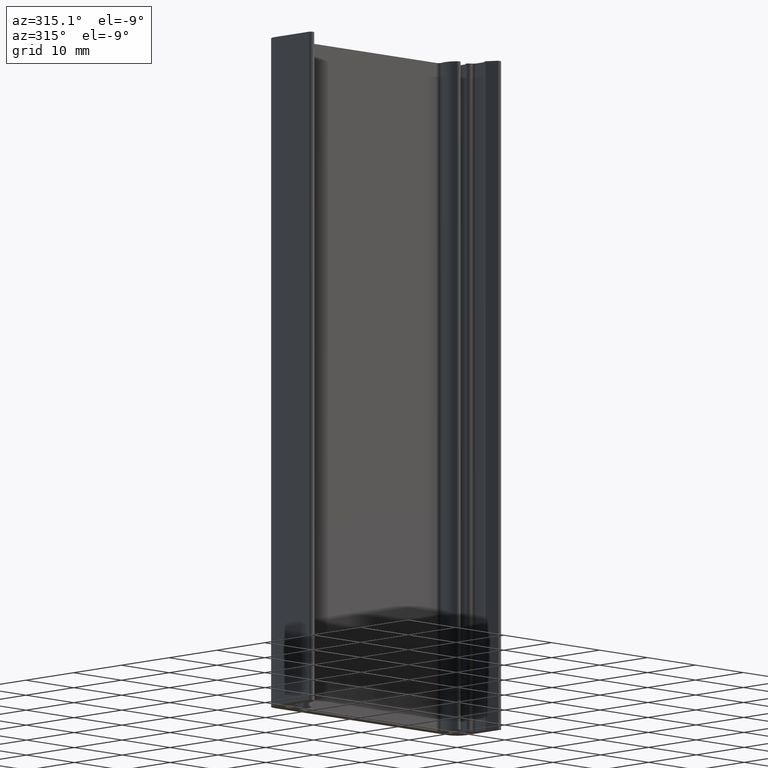
[diagram: clean part render]
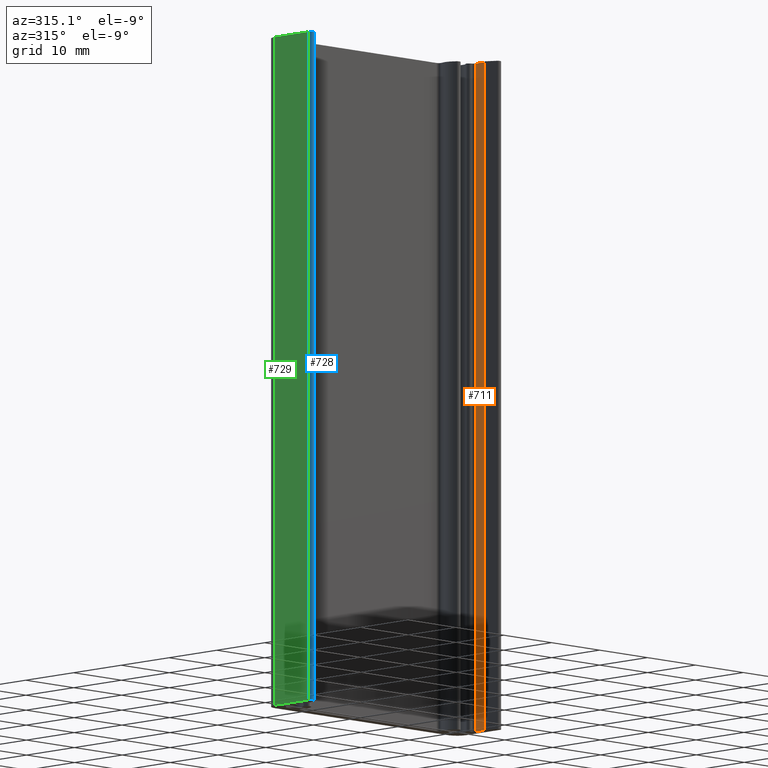
[diagram: same view with three faces highlighted in distinct colors, each labeled with its STEP entity id]
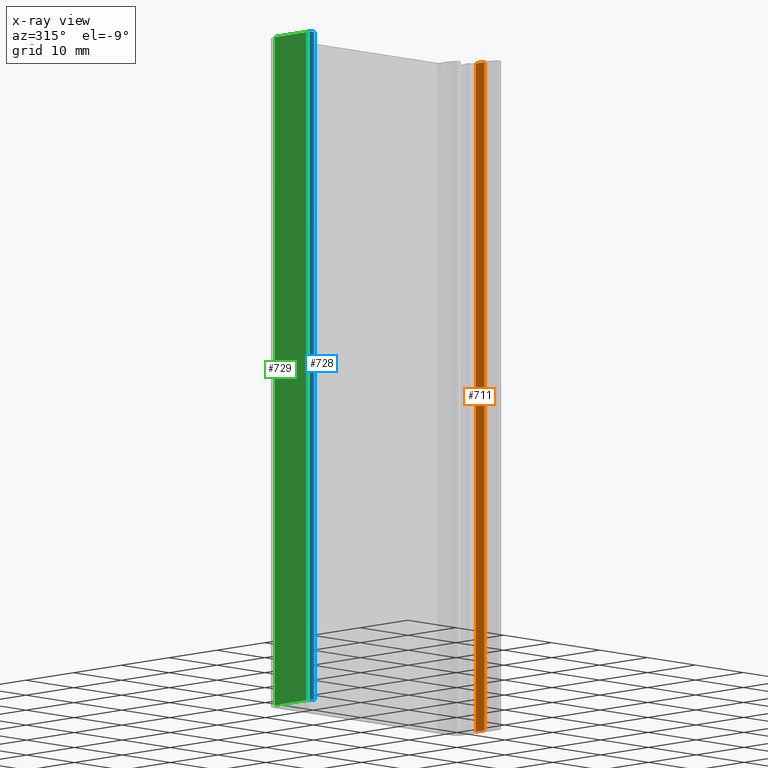
[diagram: x-ray of the same camera — body ghosted, the three highlighted faces saturated]
A machine part, auxiliary view with three faces highlighted in distinct colors.
The next image is the same camera in x-ray (body ghosted, the three faces saturated) — at least one of them is partly hidden behind the body in this view.
Their STEP definitions:

[orange] entity #711 — the highlighted planar face has unit normal (-1, 0, 0).
#18=PLANE('',#773);
#45=FACE_OUTER_BOUND('',#83,.T.);
#83=EDGE_LOOP('',(#515,#516,#517,#518));
#127=LINE('',#1136,#191);
#128=LINE('',#1139,#192);
#129=LINE('',#1141,#193);
#130=LINE('',#1142,#194);
#191=VECTOR('',#913,100.);
#192=VECTOR('',#916,1.77783328947104);
#193=VECTOR('',#917,1.77783328947104);
#194=VECTOR('',#918,100.);
#307=VERTEX_POINT('',#1132);
#308=VERTEX_POINT('',#1134);
#309=VERTEX_POINT('',#1138);
#310=VERTEX_POINT('',#1140);
#393=EDGE_CURVE('',#308,#307,#127,.T.);
#394=EDGE_CURVE('',#307,#309,#128,.T.);
#395=EDGE_CURVE('',#310,#308,#129,.T.);
#396=EDGE_CURVE('',#309,#310,#130,.T.);
#515=ORIENTED_EDGE('',*,*,#394,.F.);
#516=ORIENTED_EDGE('',*,*,#393,.F.);
#517=ORIENTED_EDGE('',*,*,#395,.F.);
#518=ORIENTED_EDGE('',*,*,#396,.F.);
#711=ADVANCED_FACE('',(#45),#18,.T.);
#773=AXIS2_PLACEMENT_3D('',#1137,#914,#915);
#913=DIRECTION('',(0.,0.,1.));
#914=DIRECTION('center_axis',(-1.,0.,0.));
#915=DIRECTION('ref_axis',(0.,-1.,0.));
#916=DIRECTION('',(0.,-1.,0.));
#917=DIRECTION('',(0.,1.,0.));
#918=DIRECTION('',(0.,0.,-1.));
#1132=CARTESIAN_POINT('',(18.699999999999,-5.22790264178207,100.));
#1134=CARTESIAN_POINT('',(18.699999999999,-5.22790264178207,0.));
#1136=CARTESIAN_POINT('',(18.699999999999,-5.22790264178207,0.));
#1137=CARTESIAN_POINT('Origin',(18.699999999999,-5.22790264178207,0.));
#1138=CARTESIAN_POINT('',(18.699999999999,-7.00573593125311,100.));
#1139=CARTESIAN_POINT('',(18.699999999999,-5.36395132089103,100.));
#1140=CARTESIAN_POINT('',(18.699999999999,-7.00573593125311,0.));
#1141=CARTESIAN_POINT('',(18.699999999999,-5.36395132089103,0.));
#1142=CARTESIAN_POINT('',(18.699999999999,-7.00573593125311,0.));

[blue] entity #728 — the highlighted cylindrical surface (edge-blend (fillet) strip) has radius 0.5 mm, axis along (0, 0, 1).
#62=FACE_OUTER_BOUND('',#100,.T.);
#100=EDGE_LOOP('',(#583,#584,#585,#586));
#161=LINE('',#1237,#225);
#163=LINE('',#1243,#227);
#225=VECTOR('',#1013,100.);
#227=VECTOR('',#1019,100.);
#273=CIRCLE('',#807,0.5);
#274=CIRCLE('',#808,0.5);
#341=VERTEX_POINT('',#1234);
#342=VERTEX_POINT('',#1236);
#343=VERTEX_POINT('',#1240);
#344=VERTEX_POINT('',#1242);
#443=EDGE_CURVE('',#341,#342,#161,.T.);
#445=EDGE_CURVE('',#343,#341,#273,.T.);
#446=EDGE_CURVE('',#343,#344,#163,.T.);
#447=EDGE_CURVE('',#342,#344,#274,.T.);
#583=ORIENTED_EDGE('',*,*,#445,.F.);
#584=ORIENTED_EDGE('',*,*,#446,.T.);
#585=ORIENTED_EDGE('',*,*,#447,.F.);
#586=ORIENTED_EDGE('',*,*,#443,.F.);
#694=CYLINDRICAL_SURFACE('',#806,0.5);
#728=ADVANCED_FACE('',(#62),#694,.T.);
#806=AXIS2_PLACEMENT_3D('',#1239,#1015,#1016);
#807=AXIS2_PLACEMENT_3D('',#1241,#1017,#1018);
#808=AXIS2_PLACEMENT_3D('',#1244,#1020,#1021);
#1013=DIRECTION('',(0.,0.,-1.));
#1015=DIRECTION('center_axis',(0.,0.,1.));
#1016=DIRECTION('ref_axis',(1.,0.,0.));
#1017=DIRECTION('center_axis',(0.,0.,1.));
#1018=DIRECTION('ref_axis',(1.,0.,0.));
#1019=DIRECTION('',(0.,0.,-1.));
#1020=DIRECTION('center_axis',(0.,0.,-1.));
#1021=DIRECTION('ref_axis',(1.,0.,0.));
#1234=CARTESIAN_POINT('',(-19.064200245337,-9.24510930995999,100.));
#1236=CARTESIAN_POINT('',(-19.064200245337,-9.24510930995999,0.));
#1237=CARTESIAN_POINT('',(-19.064200245337,-9.24510930995999,0.));
#1239=CARTESIAN_POINT('Origin',(-19.5000000000001,-8.9999999999868,0.));
#1240=CARTESIAN_POINT('',(-20.0000000000001,-8.9999999999868,100.));
#1241=CARTESIAN_POINT('Origin',(-19.5000000000001,-8.9999999999868,100.));
#1242=CARTESIAN_POINT('',(-20.0000000000001,-8.9999999999868,0.));
#1243=CARTESIAN_POINT('',(-20.0000000000001,-8.9999999999868,0.));
#1244=CARTESIAN_POINT('Origin',(-19.5000000000001,-8.9999999999868,0.));

[green] entity #729 — the highlighted planar face has unit normal (-1, 0, 0).
#27=PLANE('',#809);
#63=FACE_OUTER_BOUND('',#101,.T.);
#101=EDGE_LOOP('',(#587,#588,#589,#590));
#163=LINE('',#1243,#227);
#164=LINE('',#1247,#228);
#165=LINE('',#1249,#229);
#166=LINE('',#1250,#230);
#227=VECTOR('',#1019,100.);
#228=VECTOR('',#1024,6.99999999998679);
#229=VECTOR('',#1025,100.);
#230=VECTOR('',#1026,6.99999999998679);
#343=VERTEX_POINT('',#1240);
#344=VERTEX_POINT('',#1242);
#345=VERTEX_POINT('',#1246);
#346=VERTEX_POINT('',#1248);
#446=EDGE_CURVE('',#343,#344,#163,.T.);
#448=EDGE_CURVE('',#345,#343,#164,.T.);
#449=EDGE_CURVE('',#345,#346,#165,.T.);
#450=EDGE_CURVE('',#344,#346,#166,.T.);
#587=ORIENTED_EDGE('',*,*,#448,.F.);
#588=ORIENTED_EDGE('',*,*,#449,.T.);
#589=ORIENTED_EDGE('',*,*,#450,.F.);
#590=ORIENTED_EDGE('',*,*,#446,.F.);
#729=ADVANCED_FACE('',(#63),#27,.T.);
#809=AXIS2_PLACEMENT_3D('',#1245,#1022,#1023);
#1019=DIRECTION('',(0.,0.,-1.));
#1022=DIRECTION('center_axis',(-1.,6.34413156929858E-16,0.));
#1023=DIRECTION('ref_axis',(-7.105427357601E-16,-1.,0.));
#1024=DIRECTION('',(-6.34413156929858E-16,-1.,0.));
#1025=DIRECTION('',(0.,0.,-1.));
#1026=DIRECTION('',(6.34413156929858E-16,1.,0.));
#1240=CARTESIAN_POINT('',(-20.0000000000001,-8.9999999999868,100.));
#1242=CARTESIAN_POINT('',(-20.0000000000001,-8.9999999999868,0.));
#1243=CARTESIAN_POINT('',(-20.0000000000001,-8.9999999999868,0.));
#1245=CARTESIAN_POINT('Origin',(-20.0000000000001,-2.,0.));
#1246=CARTESIAN_POINT('',(-20.0000000000001,-2.,100.));
#1247=CARTESIAN_POINT('',(-20.0000000000001,-3.74999999999999,100.));
#1248=CARTESIAN_POINT('',(-20.0000000000001,-2.,0.));
#1249=CARTESIAN_POINT('',(-20.0000000000001,-2.,0.));
#1250=CARTESIAN_POINT('',(-20.0000000000001,-3.74999999999999,0.));